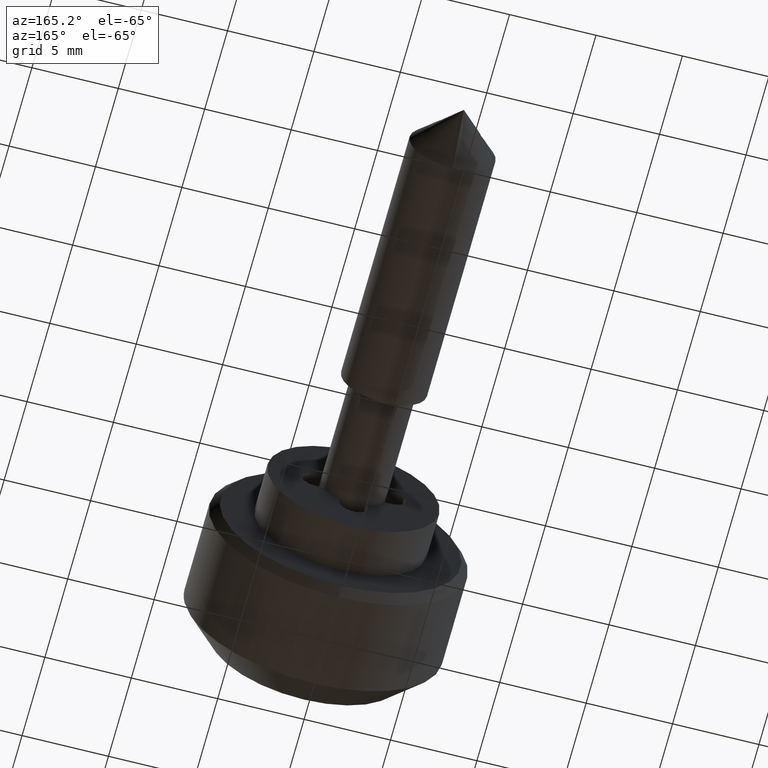
[diagram: clean part render]
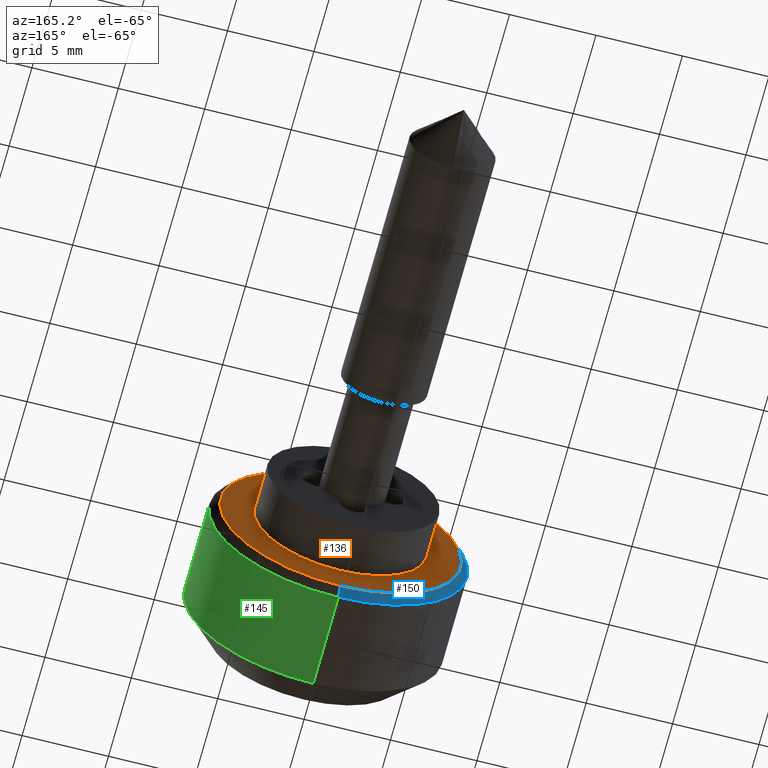
[diagram: same view with three faces highlighted in distinct colors, each labeled with its STEP entity id]
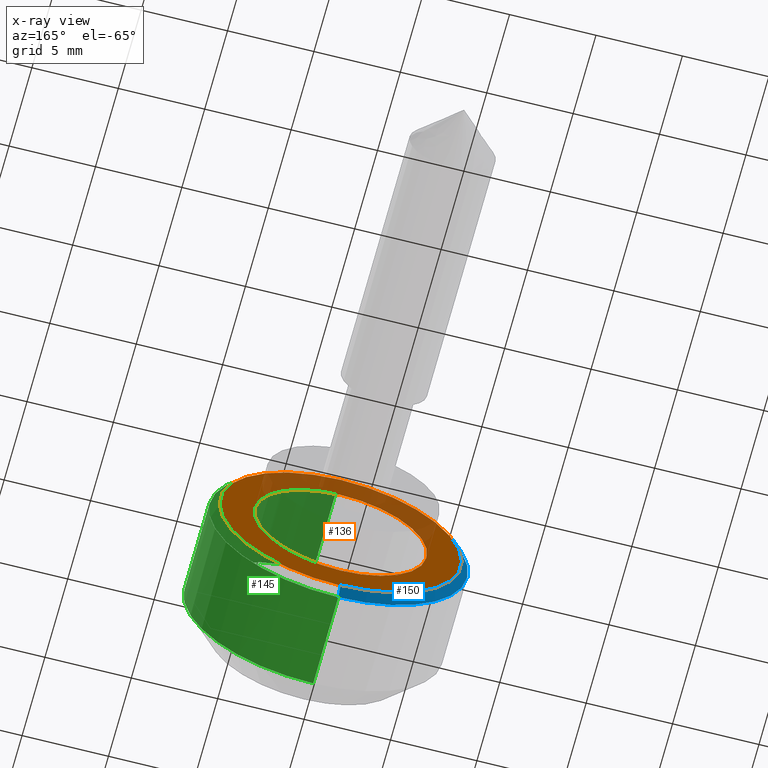
[diagram: x-ray of the same camera — body ghosted, the three highlighted faces saturated]
A machine part, auxiliary view with three faces highlighted in distinct colors.
The next image is the same camera in x-ray (body ghosted, the three faces saturated) — at least one of them is partly hidden behind the body in this view.
Their STEP definitions:

[orange] entity #136 — the highlighted planar face has unit normal (0, 1, 0).
#136=ADVANCED_FACE('',(#397,#398),#396,.T.);
#396=PLANE('',#710);
#397=FACE_OUTER_BOUND('',#711,.T.);
#398=FACE_BOUND('',#712,.T.);
#707=CARTESIAN_POINT('',(-2.00000000000E+00,-1.45492267836E+01,-9.10000000000E+00));
#708=DIRECTION('',(1.00000000000E+00,0.00000000000E+00,0.00000000000E+00));
#709=DIRECTION('',(0.00000000000E+00,1.00000000000E+00,0.00000000000E+00));
#710=AXIS2_PLACEMENT_3D('',#707,#708,#709);
#711=EDGE_LOOP('',(#953,#954));
#712=EDGE_LOOP('',(#955,#956));
#953=ORIENTED_EDGE('',*,*,#1092,.T.);
#954=ORIENTED_EDGE('',*,*,#1093,.T.);
#955=ORIENTED_EDGE('',*,*,#1094,.T.);
#956=ORIENTED_EDGE('',*,*,#1095,.T.);
#1092=EDGE_CURVE('',#1565,#1566,#1567,.T.);
#1093=EDGE_CURVE('',#1566,#1565,#1573,.T.);
#1094=EDGE_CURVE('',#1579,#1580,#1581,.T.);
#1095=EDGE_CURVE('',#1580,#1579,#1587,.T.);
#1565=VERTEX_POINT('',#2044);
#1566=VERTEX_POINT('',#2045);
#1567=CIRCLE('',#2049,7.00000000000E+00);
#1573=CIRCLE('',#2053,7.00000000000E+00);
#1579=VERTEX_POINT('',#2054);
#1580=VERTEX_POINT('',#2055);
#1581=CIRCLE('',#2059,5.00000000000E+00);
#1587=CIRCLE('',#2063,5.00000000000E+00);
#2044=CARTESIAN_POINT('',(-2.00000000000E+00,0.00000000000E+00,-7.00000000000E+00));
#2045=CARTESIAN_POINT('',(-2.00000000000E+00,2.96059473233E-16,7.00000000000E+00));
#2046=CARTESIAN_POINT('',(-2.00000000000E+00,0.00000000000E+00,0.00000000000E+00));
#2047=DIRECTION('',(1.00000000000E+00,0.00000000000E+00,0.00000000000E+00));
#2048=DIRECTION('',(0.00000000000E+00,-1.22460635382E-16,-1.00000000000E+00));
#2049=AXIS2_PLACEMENT_3D('',#2046,#2047,#2048);
#2050=CARTESIAN_POINT('',(-2.00000000000E+00,0.00000000000E+00,0.00000000000E+00));
#2051=DIRECTION('',(1.00000000000E+00,0.00000000000E+00,0.00000000000E+00));
#2052=DIRECTION('',(0.00000000000E+00,-1.22460635382E-16,-1.00000000000E+00));
#2053=AXIS2_PLACEMENT_3D('',#2050,#2051,#2052);
#2054=CARTESIAN_POINT('',(-2.00000000000E+00,0.00000000000E+00,-5.00000000000E+00));
#2055=CARTESIAN_POINT('',(-2.00000000000E+00,5.92118946467E-16,5.00000000000E+00));
#2056=CARTESIAN_POINT('',(-2.00000000000E+00,0.00000000000E+00,0.00000000000E+00));
#2057=DIRECTION('',(-1.00000000000E+00,0.00000000000E+00,-0.00000000000E+00));
#2058=DIRECTION('',(0.00000000000E+00,-1.22460635382E-16,-1.00000000000E+00));
#2059=AXIS2_PLACEMENT_3D('',#2056,#2057,#2058);
#2060=CARTESIAN_POINT('',(-2.00000000000E+00,0.00000000000E+00,0.00000000000E+00));
#2061=DIRECTION('',(-1.00000000000E+00,0.00000000000E+00,-0.00000000000E+00));
#2062=DIRECTION('',(0.00000000000E+00,-1.22460635382E-16,-1.00000000000E+00));
#2063=AXIS2_PLACEMENT_3D('',#2060,#2061,#2062);

[blue] entity #150 — the highlighted face is a freeform B-spline surface patch.
#150=ADVANCED_FACE('',(#540),#539,.T.);
#539=( BOUNDED_SURFACE() B_SPLINE_SURFACE( 2,1,((#798,#799),(#800,#801),(#802,#803),(#804,#805),(#806,#807)), .UNSPECIFIED.,.F.,.F.,.F.) B_SPLINE_SURFACE_WITH_KNOTS((3,2,3),(2,2),(0.00000000000E+00,5.00000000000E-01,1.00000000000E+00),(0.00000000000E+00,1.00000000000E+00), .UNSPECIFIED. ) GEOMETRIC_REPRESENTATION_ITEM() RATIONAL_B_SPLINE_SURFACE(((1.00000000000E+00,1.00000000000E+00),(7.07106781187E-01,7.07106781187E-01),(1.00000000000E+00,1.00000000000E+00),(7.07106781187E-01,7.07106781187E-01),(1.00000000000E+00,1.00000000000E+00))) REPRESENTATION_ITEM('') SURFACE() );
#540=FACE_OUTER_BOUND('',#808,.T.);
#798=CARTESIAN_POINT('',(5.00000000000E+00,0.00000000000E+00,0.00000000000E+00));
#799=CARTESIAN_POINT('',(-5.60660171780E+00,-5.52375249904E-15,1.06066017178E+01));
#800=CARTESIAN_POINT('',(5.00000000000E+00,0.00000000000E+00,0.00000000000E+00));
#801=CARTESIAN_POINT('',(-5.60660171780E+00,1.06066017178E+01,1.06066017178E+01));
#802=CARTESIAN_POINT('',(5.00000000000E+00,0.00000000000E+00,0.00000000000E+00));
#803=CARTESIAN_POINT('',(-5.60660171780E+00,1.06066017178E+01,6.17321954122E-15));
#804=CARTESIAN_POINT('',(5.00000000000E+00,0.00000000000E+00,0.00000000000E+00));
#805=CARTESIAN_POINT('',(-5.60660171780E+00,1.06066017178E+01,-1.06066017178E+01));
#806=CARTESIAN_POINT('',(5.00000000000E+00,0.00000000000E+00,0.00000000000E+00));
#807=CARTESIAN_POINT('',(-5.60660171780E+00,6.82268658340E-15,-1.06066017178E+01));
#808=EDGE_LOOP('',(#1010,#1011,#1012,#1013));
#1010=ORIENTED_EDGE('',*,*,#1113,.F.);
#1011=ORIENTED_EDGE('',*,*,#1120,.F.);
#1012=ORIENTED_EDGE('',*,*,#1092,.F.);
#1013=ORIENTED_EDGE('',*,*,#1121,.T.);
#1092=EDGE_CURVE('',#1565,#1566,#1567,.T.);
#1113=EDGE_CURVE('',#1701,#1708,#1709,.T.);
#1120=EDGE_CURVE('',#1566,#1701,#1751,.T.);
#1121=EDGE_CURVE('',#1565,#1708,#1757,.T.);
#1565=VERTEX_POINT('',#2044);
#1566=VERTEX_POINT('',#2045);
#1567=CIRCLE('',#2049,7.00000000000E+00);
#1701=VERTEX_POINT('',#2136);
#1708=VERTEX_POINT('',#2139);
#1709=CIRCLE('',#2143,7.50000000000E+00);
#1751=(BOUNDED_CURVE() B_SPLINE_CURVE(1,(#2158,#2159),.UNSPECIFIED.,.F.,.F.) B_SPLINE_CURVE_WITH_KNOTS((2,2),(6.59966328740E-01,7.07106782442E-01),.UNSPECIFIED.) CURVE() GEOMETRIC_REPRESENTATION_ITEM() RATIONAL_B_SPLINE_CURVE((1.00000000000E+00,1.00000000000E+00)) REPRESENTATION_ITEM('') );
#1757=(BOUNDED_CURVE() B_SPLINE_CURVE(1,(#2160,#2161),.UNSPECIFIED.,.F.,.F.) B_SPLINE_CURVE_WITH_KNOTS((2,2),(6.59966329001E-01,7.07106780467E-01),.UNSPECIFIED.) CURVE() GEOMETRIC_REPRESENTATION_ITEM() RATIONAL_B_SPLINE_CURVE((7.50000000000E-01,7.50000000000E-01)) REPRESENTATION_ITEM('') );
#2044=CARTESIAN_POINT('',(-2.00000000000E+00,0.00000000000E+00,-7.00000000000E+00));
#2045=CARTESIAN_POINT('',(-2.00000000000E+00,2.96059473233E-16,7.00000000000E+00));
#2046=CARTESIAN_POINT('',(-2.00000000000E+00,0.00000000000E+00,0.00000000000E+00));
#2047=DIRECTION('',(1.00000000000E+00,0.00000000000E+00,0.00000000000E+00));
#2048=DIRECTION('',(0.00000000000E+00,-1.22460635382E-16,-1.00000000000E+00));
#2049=AXIS2_PLACEMENT_3D('',#2046,#2047,#2048);
#2136=CARTESIAN_POINT('',(-2.50000000000E+00,-1.77635683940E-15,7.50000000000E+00));
#2139=CARTESIAN_POINT('',(-2.50000000000E+00,0.00000000000E+00,-7.50000000000E+00));
#2140=CARTESIAN_POINT('',(-2.50000000000E+00,0.00000000000E+00,0.00000000000E+00));
#2141=DIRECTION('',(-1.00000000000E+00,0.00000000000E+00,-0.00000000000E+00));
#2142=DIRECTION('',(0.00000000000E+00,-1.22460635382E-16,-1.00000000000E+00));
#2143=AXIS2_PLACEMENT_3D('',#2140,#2141,#2142);
#2158=CARTESIAN_POINT('',(-1.99999999610E+00,-3.64549065766E-15,6.99999999610E+00));
#2159=CARTESIAN_POINT('',(-2.50000001332E+00,-3.90588285661E-15,7.50000001332E+00));
#2160=CARTESIAN_POINT('',(-1.99999999887E+00,3.90778567432E-15,-6.99999999887E+00));
#2161=CARTESIAN_POINT('',(-2.49999999237E+00,4.18691321890E-15,-7.49999999237E+00));

[green] entity #145 — the highlighted cylindrical surface (partial cylindrical patch) has radius 7.5 mm, axis along (0, -1, -0).
#145=ADVANCED_FACE('',(#490),#489,.T.);
#489=CYLINDRICAL_SURFACE('',#776,7.50000000000E+00);
#490=FACE_OUTER_BOUND('',#777,.T.);
#773=CARTESIAN_POINT('',(-1.00200000000E+03,0.00000000000E+00,0.00000000000E+00));
#774=DIRECTION('',(-1.00000000000E+00,-0.00000000000E+00,-0.00000000000E+00));
#775=DIRECTION('',(0.00000000000E+00,0.00000000000E+00,1.00000000000E+00));
#776=AXIS2_PLACEMENT_3D('',#773,#774,#775);
#777=EDGE_LOOP('',(#988,#989,#990,#991,#992,#993));
#988=ORIENTED_EDGE('',*,*,#1115,.T.);
#989=ORIENTED_EDGE('',*,*,#1112,.T.);
#990=ORIENTED_EDGE('',*,*,#1104,.T.);
#991=ORIENTED_EDGE('',*,*,#1089,.T.);
#992=ORIENTED_EDGE('',*,*,#1081,.T.);
#993=ORIENTED_EDGE('',*,*,#1114,.F.);
#1081=EDGE_CURVE('',#1492,#1484,#1493,.T.);
#1089=EDGE_CURVE('',#1532,#1492,#1545,.T.);
#1104=EDGE_CURVE('',#1649,#1532,#1650,.T.);
#1112=EDGE_CURVE('',#1701,#1649,#1702,.T.);
#1114=EDGE_CURVE('',#1708,#1484,#1715,.T.);
#1115=EDGE_CURVE('',#1708,#1701,#1721,.T.);
#1484=VERTEX_POINT('',#1991);
#1492=VERTEX_POINT('',#1997);
#1493=CIRCLE('',#2001,7.50000000000E+00);
#1532=VERTEX_POINT('',#2023);
#1545=CIRCLE('',#2034,7.50000000000E+00);
#1649=VERTEX_POINT('',#2104);
#1650=CIRCLE('',#2108,7.50000000000E+00);
#1701=VERTEX_POINT('',#2136);
#1702=(BOUNDED_CURVE() B_SPLINE_CURVE(1,(#2137,#2138),.UNSPECIFIED.,.F.,.F.) B_SPLINE_CURVE_WITH_KNOTS((2,2),(8.33333283663E-02,9.16666668285E-01),.UNSPECIFIED.) CURVE() GEOMETRIC_REPRESENTATION_ITEM() RATIONAL_B_SPLINE_CURVE((1.00000000000E+00,1.00000000000E+00)) REPRESENTATION_ITEM('') );
#1708=VERTEX_POINT('',#2139);
#1715=(BOUNDED_CURVE() B_SPLINE_CURVE(1,(#2144,#2145),.UNSPECIFIED.,.F.,.F.) B_SPLINE_CURVE_WITH_KNOTS((2,2),(8.33333333333E-02,9.16666666667E-01),.UNSPECIFIED.) CURVE() GEOMETRIC_REPRESENTATION_ITEM() RATIONAL_B_SPLINE_CURVE((7.50000000000E-01,7.50000000000E-01)) REPRESENTATION_ITEM('') );
#1721=CIRCLE('',#2149,7.50000000000E+00);
#1991=CARTESIAN_POINT('',(-7.99990000000E+00,-1.86247738998E-06,-7.50000000000E+00));
#1997=CARTESIAN_POINT('',(-7.99990000000E+00,-7.44580418759E+00,-9.00000000000E-01));
#1998=CARTESIAN_POINT('',(-7.99990000000E+00,0.00000000000E+00,0.00000000000E+00));
#1999=DIRECTION('',(1.00000000000E+00,0.00000000000E+00,0.00000000000E+00));
#2000=DIRECTION('',(0.00000000000E+00,-0.00000000000E+00,1.00000000000E+00));
#2001=AXIS2_PLACEMENT_3D('',#1998,#1999,#2000);
#2023=CARTESIAN_POINT('',(-7.99990000000E+00,-7.44580418759E+00,9.00000000000E-01));
#2031=CARTESIAN_POINT('',(-7.99990000000E+00,0.00000000000E+00,0.00000000000E+00));
#2032=DIRECTION('',(1.00000000000E+00,0.00000000000E+00,-0.00000000000E+00));
#2033=DIRECTION('',(-0.00000000000E+00,-0.00000000000E+00,-1.00000000000E+00));
#2034=AXIS2_PLACEMENT_3D('',#2031,#2032,#2033);
#2104=CARTESIAN_POINT('',(-7.99990000000E+00,3.78799927057E-10,7.50000000000E+00));
#2105=CARTESIAN_POINT('',(-7.99990000000E+00,0.00000000000E+00,0.00000000000E+00));
#2106=DIRECTION('',(1.00000000000E+00,0.00000000000E+00,-0.00000000000E+00));
#2107=DIRECTION('',(0.00000000000E+00,9.92773891679E-01,1.20000000000E-01));
#2108=AXIS2_PLACEMENT_3D('',#2105,#2106,#2107);
#2136=CARTESIAN_POINT('',(-2.50000000000E+00,-1.77635683940E-15,7.50000000000E+00));
#2137=CARTESIAN_POINT('',(-2.49999996722E+00,0.00000000000E+00,7.50000000000E+00));
#2138=CARTESIAN_POINT('',(-7.99990001068E+00,0.00000000000E+00,7.50000000000E+00));
#2139=CARTESIAN_POINT('',(-2.50000000000E+00,0.00000000000E+00,-7.50000000000E+00));
#2144=CARTESIAN_POINT('',(-2.50000000000E+00,-2.96059473233E-16,-7.50000000000E+00));
#2145=CARTESIAN_POINT('',(-7.99990000000E+00,-2.96059473233E-16,-7.50000000000E+00));
#2146=CARTESIAN_POINT('',(-2.50000000000E+00,0.00000000000E+00,0.00000000000E+00));
#2147=DIRECTION('',(-1.00000000000E+00,0.00000000000E+00,-0.00000000000E+00));
#2148=DIRECTION('',(0.00000000000E+00,-1.22460635382E-16,-1.00000000000E+00));
#2149=AXIS2_PLACEMENT_3D('',#2146,#2147,#2148);